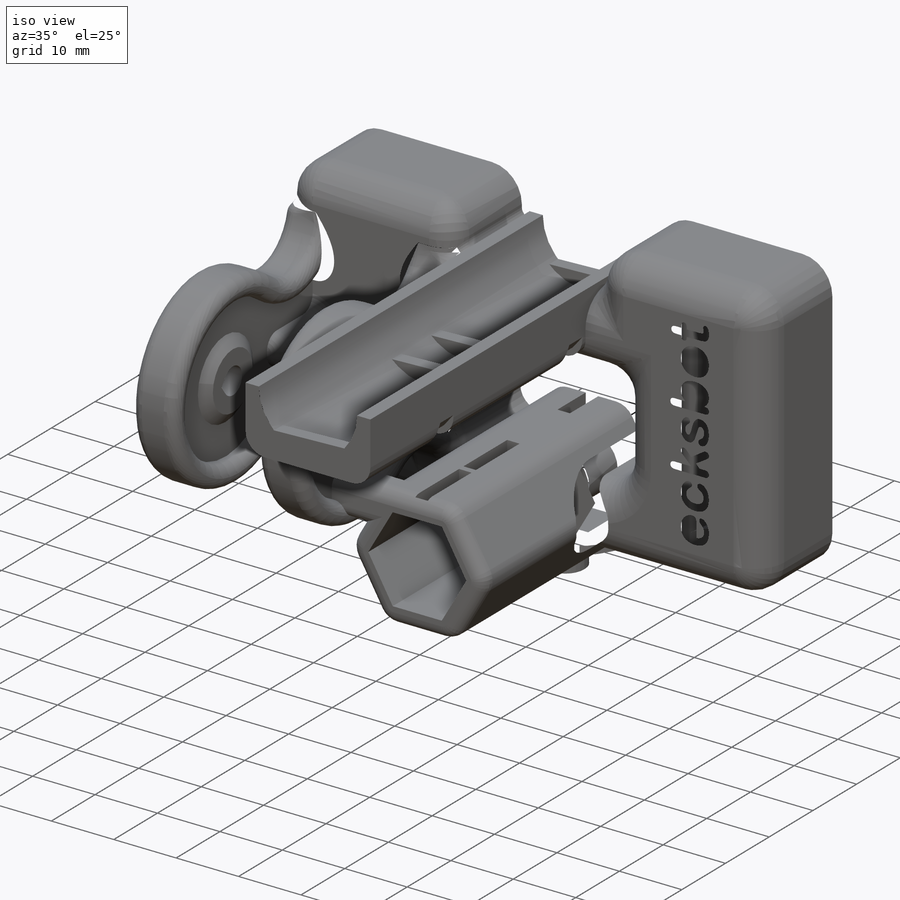
[diagram: iso view]
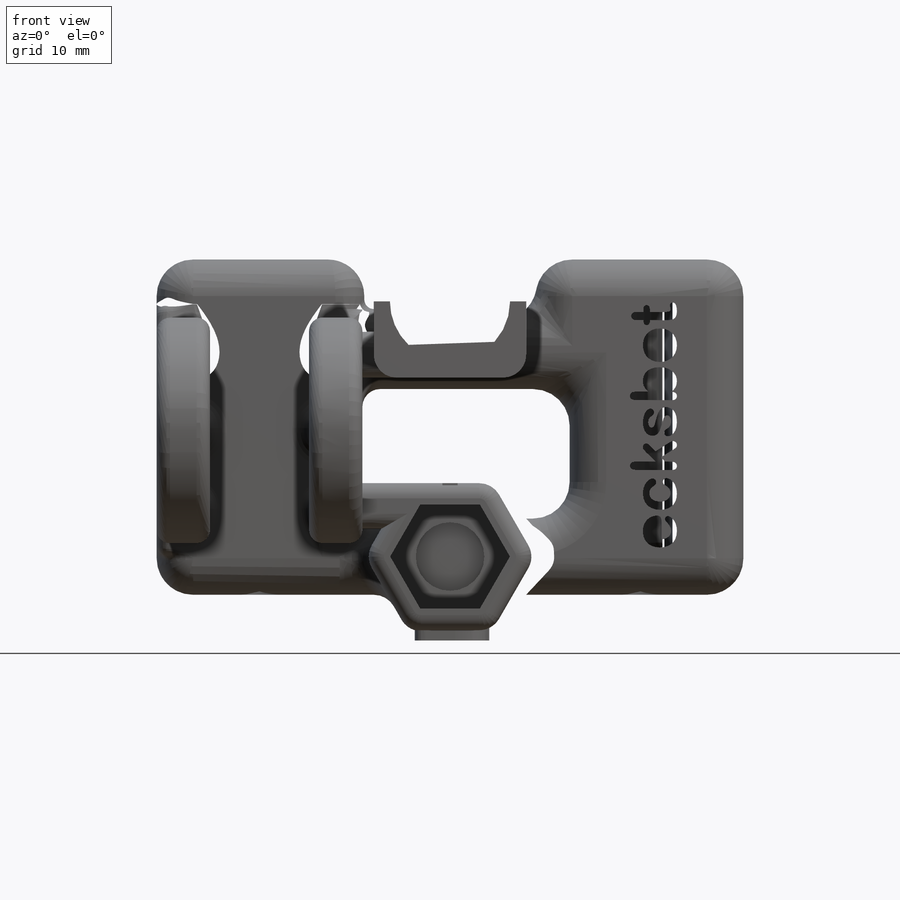
[diagram: front view]
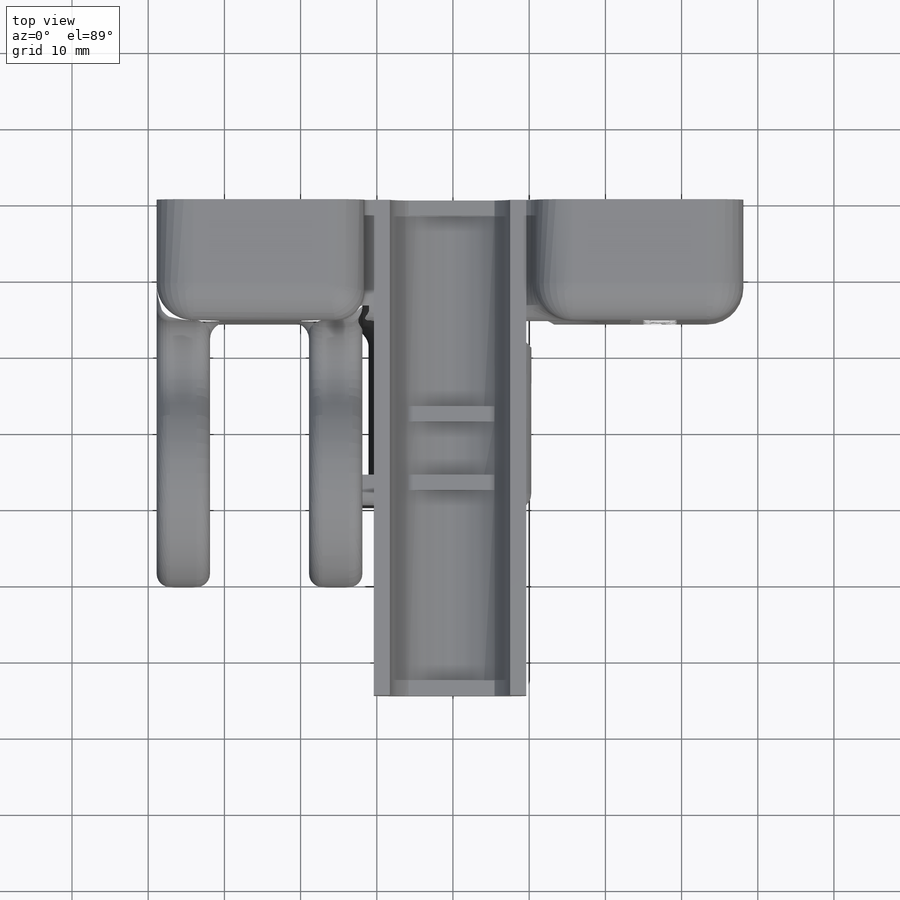
[diagram: top view]
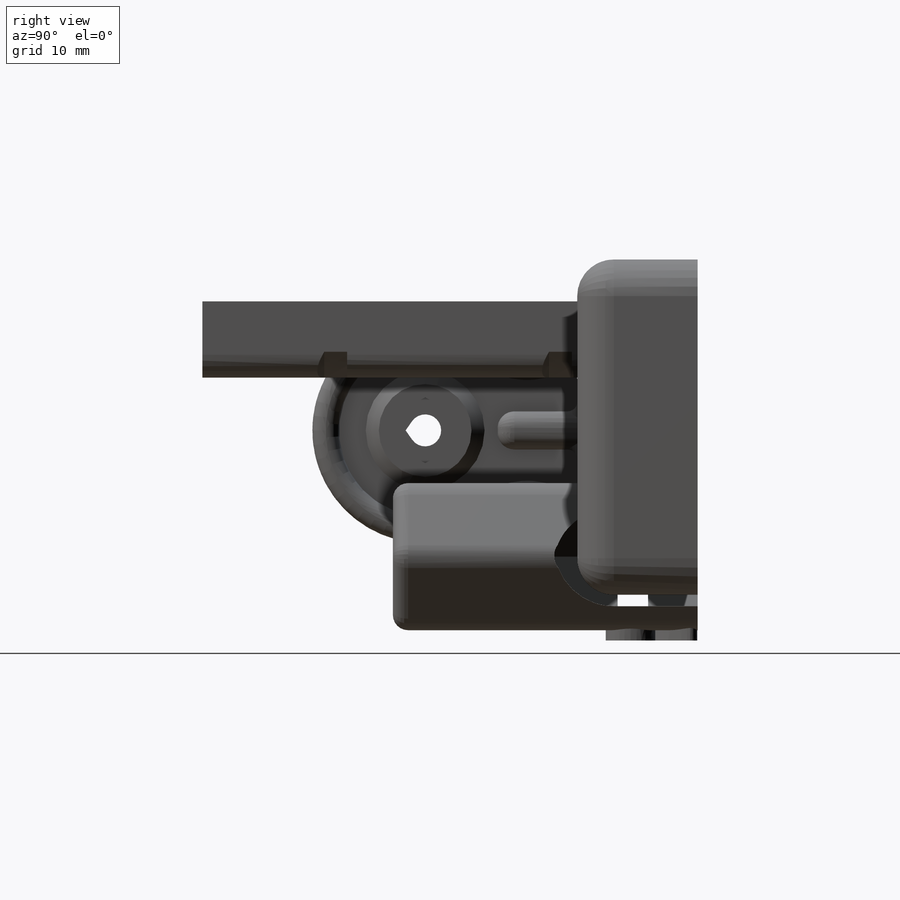
[diagram: right view]
SOLIDWORKS PART (.sldprt)
format: sldprt  version: not decoded by parser v0  size: 2,668,544 bytes
history: native  units: mm
features: sketch x43, fillet x31, cut_extrude x22, extrude x21, plane x6, chamfer x6, material x1 (+11 scaffold rows collapsed)
feature tree (141):
  scaffold x11  (default folders/planes/origin — collapsed)
  material  "Material <not specified>"
  sketch  "Sketch9"  dims[D1=0.0mm]
  extrude  "Boss-Extrude5"  Depth=15.8mm
  sketch  "Sketch13"  dims[D1=5.0mm D2=~19.296152mm]
  extrude  "Boss-Extrude6"  Depth=24.2mm
  sketch  "Sketch16"  dims[c1.D1=31.4mm c1.D2=13.0mm c1.D4=17.0mm c1.D5=10.0mm c2.D2=10.0mm c2.D5=10.0mm c2.D1=15.7mm c3.D2=15.7mm c3.D3=0.0mm]
  cut_extrude  "Cut-Extrude3"  [1 undecoded]
  sketch  "Sketch18"  dims[D1=2.108mm]
  extrude  "Boss-Extrude7"  Depth=35mm
  sketch  "Sketch25"  dims[D1=23.75mm D2=22.5mm D3=6.5mm]
  cut_extrude  "Cut-Extrude4"  [1 undecoded]
  sketch  "Sketch27"  dims[D4=10.0mm D1=1.25mm D2=1.25mm D3=5.5mm]
  extrude  "Boss-Extrude9"  Depth=49.2mm
  sketch  "Sketch31"  dims[c1.D1=~7.884411mm c1.D2=~7.884411mm c2.D1=10.392mm c2.D2=10.0mm]
  cut_extrude  "Cut-Extrude5"  [1 undecoded]
  sketch  "Sketch33"  dims[D1=5.5mm]
  extrude  "Boss-Extrude10"  Depth=2mm
  sketch  "Sketch34"  dims[D1=5.5mm]
  extrude  "Boss-Extrude11"  Depth=2mm
  plane  "Plane1"  Offset=2mm
  plane  "Plane2"  Offset=9mm
  sketch  "Sketch36"  dims[D1=0.0mm]
  extrude  "Boss-Extrude12"  Depth=2mm
  sketch  "Sketch37"  dims[D1=0.0mm]
  extrude  "Boss-Extrude13"  Depth=2mm
  sketch  "Sketch40"  dims[D1=~1.247788mm]
  cut_extrude  "Cut-Extrude6"  [1 undecoded]
  sketch  "Sketch43"  dims[D1=13.6mm]
  cut_extrude  "Cut-Extrude7"  Depth=29.5mm
  sketch  "Sketch46"  dims[D1=0.0mm D2=1.0mm D3=1.0mm]
  cut_extrude  "Cut-Extrude8"  Depth=6.5mm
  sketch  "Sketch49"
  extrude  "Boss-Extrude14"  Depth=0.68mm
  sketch  "Sketch52"  dims[c1.D4=~2.716065mm c1.D5=~5.182263mm c1.D6=~5.182263mm c2.D4=~4.73107mm c3.D4=~41.597019deg c4.D4=~4.73107mm c5.D4=35.0deg c5.D5=~4.73107mm c6.D5=35.0deg c6.D1=25.0mm c6.D2=25.0mm c6.D3=7.9mm]
  cut_extrude  "Cut-Extrude10"  Depth=42mm
  plane  "Plane3"  Offset=3mm
  sketch  "Sketch57"  dims[c1.D1=~6.886063mm c2.D1=82.0deg c3.D1=7.2269mm c4.D1=82.0deg]
  cut_extrude  "Cut-Extrude13"  [1 undecoded]
  plane  "Plane4"  Offset=4mm
  sketch  "Sketch58"  dims[D1=0.82mm D2=2.0mm D3=0.5mm]
  extrude  "Boss-Extrude15"  Depth=37mm
  chamfer  "Chamfer4"  Distance=1mm Angle=66deg
  sketch  "Sketch61"  dims[D1=5.1mm D2=0.2mm D3=10.0mm D4=10.0mm]
  extrude  "Boss-Extrude16"  Depth=1.35mm
  plane  "Plane5"  Offset=19mm
  sketch  "Sketch64"  dims[c1.D1=0.0mm c1.D2=4.1mm c1.D3=0.0mm c2.D1=4.1mm]
  cut_extrude  "Cut-Extrude14"  Depth=6mm
  chamfer  "Chamfer7"  Distance=3mm Angle=45deg
  plane  "Plane6"  Offset=0.7mm
  sketch  "Sketch70"  dims[D1=0.0mm D2=0.0mm]
  cut_extrude  "Cut-Extrude15"  Depth=6mm
  chamfer  "Chamfer8"  Distance=3mm Angle=45deg
  sketch  "Sketch72"  dims[c1.D1=~1.834659mm c1.D2=8.4mm c1.D4=~4.561997mm c2.D1=4.24mm c2.D2=~22.425962mm c2.D3=~3.657274mm c3.D3=35.0deg]
  cut_extrude  "Cut-Extrude16"  [1 undecoded]
  sketch  "Sketch73"  dims[D1=1.0mm D2=1.0mm D3=1.0mm D4=10.0mm D5=1.0mm D6=10.0mm]
  cut_extrude  "Cut-Extrude17"  [1 undecoded]
  chamfer  "Chamfer9"  Distance=1mm Angle=55deg
  sketch  "Sketch77"  dims[D1=5.0mm D2=2.0mm D3=2.0mm]
  extrude  "Boss-Extrude17"  [1 undecoded]
  sketch  "Sketch79"  dims[D1=2.0mm D2=0.0mm]
  cut_extrude  "Cut-Extrude18"  [1 undecoded]
  sketch  "Sketch80"
  cut_extrude  "Cut-Extrude19"  Depth=10mm
  sketch  "Sketch81"  dims[D1=0.0mm D2=7.0mm]
  extrude  "Boss-Extrude18"  Depth=2.892mm
  sketch  "Sketch87"  dims[D1=7.5mm]
  cut_extrude  "Cut-Extrude20"  Depth=2.5mm
  fillet  "Fillet8"  Radius=3.8mm
  fillet  "Fillet10"  Radius=4.8mm
  fillet  "Fillet12"  Radius=3mm
  fillet  "Fillet16"  Radius=4.8mm
  fillet  "Fillet20"  Radius=3mm
  fillet  "Fillet21"  Radius=3mm
  fillet  "Fillet22"  Radius=4.8mm
  sketch  "Sketch89"  dims[D1=0.0mm D2=0.0mm]
  cut_extrude  "Cut-Extrude21"  [1 undecoded]
  chamfer  "Chamfer13"  Distance=1mm Angle=45deg
  sketch  "Sketch90"  dims[D1=0.3978mm D2=0.3978mm D3=0.3978mm]
  extrude  "Boss-Extrude26"  [1 undecoded]
  sketch  "Sketch92"  dims[c1.D4=5.0mm c1.D2=5.0mm c1.D1=3.5mm c2.D2=1.2mm c2.D3=1.2mm]
  cut_extrude  "Cut-Extrude22"  Depth=1.2mm
  sketch  "Sketch102"  dims[D1=0.0mm D2=0.0mm]
  cut_extrude  "Cut-Extrude24"  Depth=1.2mm
  sketch  "Sketch94"  dims[D1=0.0mm D2=0.0mm]
  extrude  "Boss-Extrude27"  Depth=1mm
  sketch  "Sketch104"  dims[D1=0.0mm D2=0.0mm]
  extrude  "Boss-Extrude35"  Depth=1mm
  sketch  "Sketch96"  dims[D1=0.0mm D2=4.2mm D3=0.0mm]
  cut_extrude  "Cut-Extrude23"  Depth=1.2mm
  sketch  "Sketch105"  dims[c1.D3=4.5mm c1.D2=4.5mm c1.D1=0.0mm c2.D2=0.0mm]
  cut_extrude  "Cut-Extrude25"  Depth=1.2mm
  sketch  "Sketch88"  dims[D1=6.0mm D2=6.0mm D3=4.0mm D4=4.0mm]
  extrude  "Boss-Extrude34"  Depth=10mm
  sketch  "Sketch107"  dims[D1=0.0mm D2=0.0mm D3=0.0mm D4=0.0mm]
  extrude  "Boss-Extrude36"  Depth=1mm
  fillet  "Fillet31"  Radius=2mm
  sketch  "Sketch98"  dims[D1=0.0mm D2=0.0mm]
  extrude  "Boss-Extrude29"  Depth=1mm
  sketch  "Sketch113"  dims[D1=0.1mm]
  cut_extrude  "Cut-Extrude28"  [1 undecoded]
  sketch  "Sketch114"  dims[D1=0.0mm D2=0.0mm]
  extrude  "Boss-Extrude38"  [1 undecoded]
  chamfer  "Chamfer14"  Distance=1.8mm Angle=35deg
  fillet  "Fillet26"  Radius=1.75mm
  fillet  "Fillet27"  Radius=2.2mm
  fillet  "Fillet29"  Radius=2.2mm
  fillet  "Fillet30"  Radius=2.2mm
  fillet  "Fillet32"  Radius=2.2mm
  sketch  "Sketch110"  dims[D1=0.0mm]
  extrude  "Boss-Extrude37"  Depth=3.892mm
  fillet  "Fillet33"  Radius=4.8mm
  fillet  "Fillet35"  Radius=4.8mm
  fillet  "Fillet38"  Radius=1.75mm
  fillet  "Fillet39"  Radius=1.7mm
  fillet  "Fillet41"  Radius=2.325mm
  fillet  "Fillet42"  Radius=3.45mm
  fillet  "Fillet43"  Radius=3.45mm
  fillet  "Fillet44"  Radius=4.8mm
  fillet  "Fillet45"  Radius=1.7mm
  fillet  "Fillet47"  Radius=3mm
  fillet  "Fillet49"  Radius=1.7mm
  fillet  "Fillet50"  Radius=4.8mm
  fillet  "Fillet51"  Radius=1.25mm
  fillet  "Fillet52"  Radius=1.25mm
  fillet  "Fillet53"  Radius=1.25mm
  fillet  "Fillet54"  Radius=1.25mm
  fillet  "Fillet55"  Radius=1.25mm
  sketch  "Sketch115"  dims[D1=4.0mm]
  cut_extrude  "Cut-Extrude29"  Depth=0.68mm
  fillet  "Fillet56"  Radius=3mm
decode coverage: 108 of 123 modeling features carry decoded parameters
note: ~ marks probable driven/reference dimensions
note: 13 parameter values undecoded
summary: no parameter record found for 13 features
note: suppression state not decoded; provenance and decode notes live in map.json
